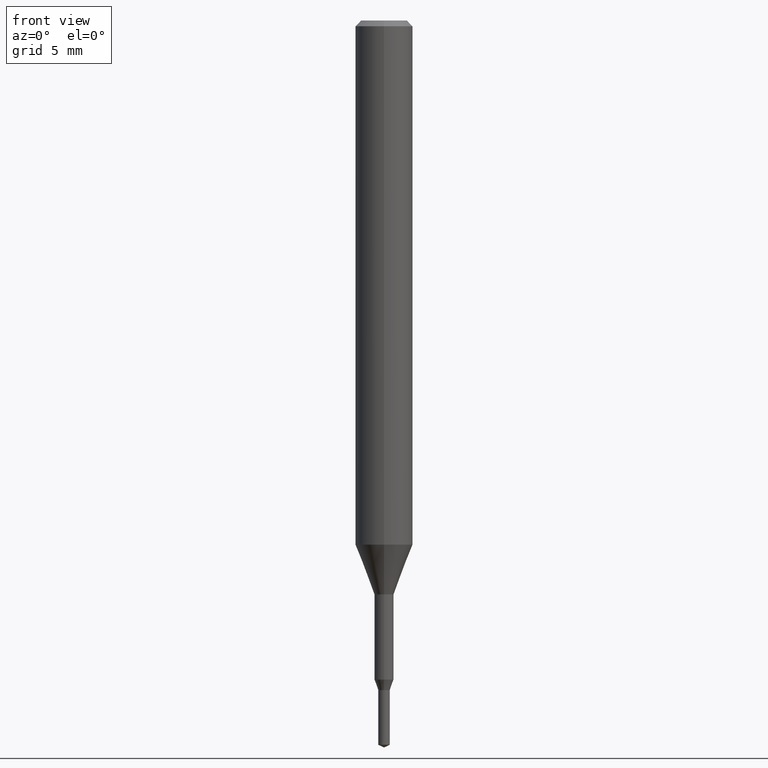
[diagram: clean part render]
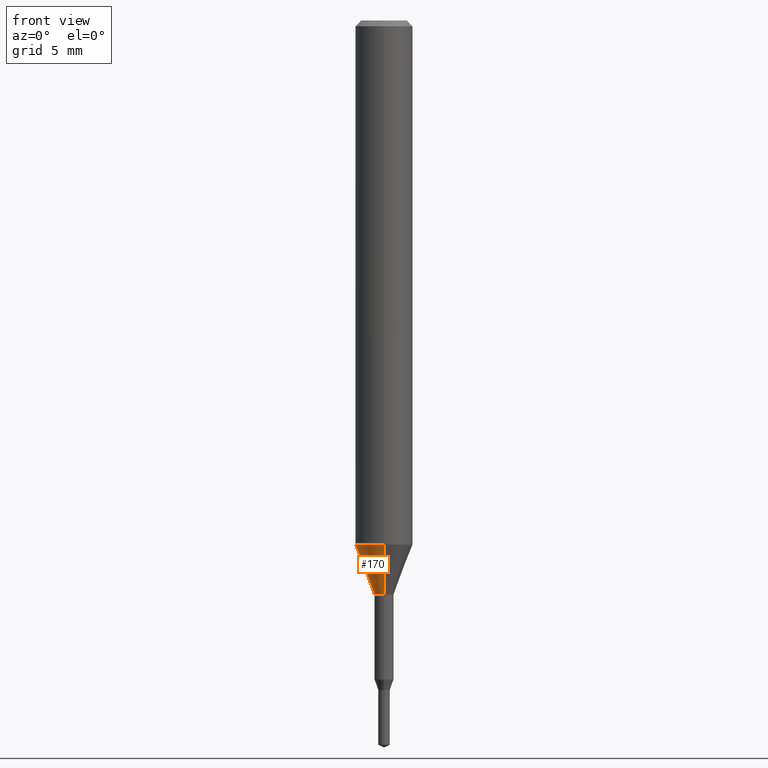
[diagram: same view with one face highlighted and labeled with its STEP entity id]
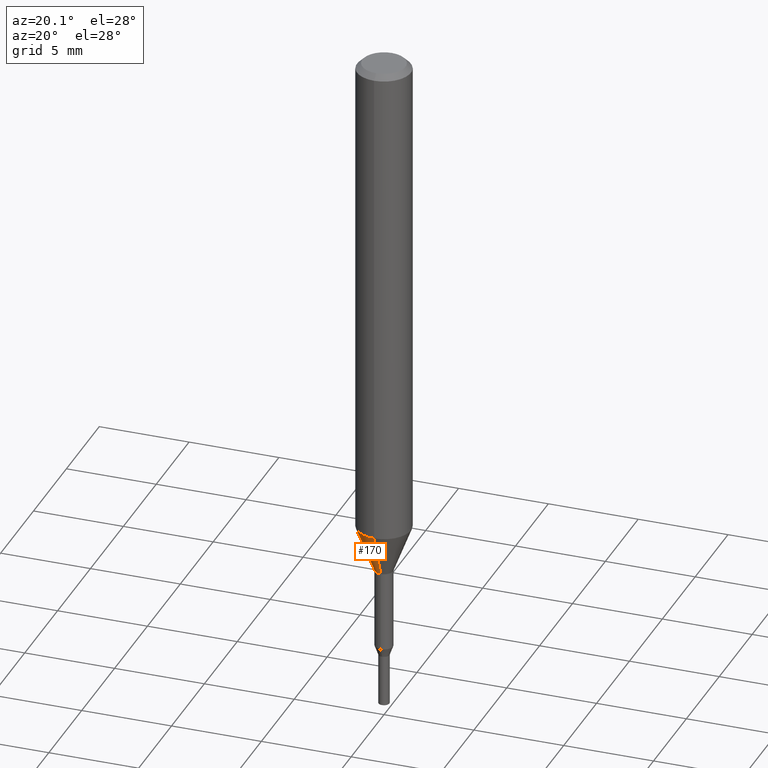
[diagram: same view with one face highlighted and labeled with its STEP entity id]
A machine part, front view. The second image highlights one B-rep face of the part: STEP entity #170.
A second angle (auxiliary view) of the same face is appended — the face is thin or edge-on in the first view.
In plain terms, the highlighted conical surface has half-angle 21.001 deg.
Its self-contained STEP definition (entity closure, byte-faithful):
#126=VERTEX_POINT('',#306);
#156=EDGE_CURVE('',#126,#200,#338,.T.);
#170=ADVANCED_FACE('',(#353),#354,.T.);
#176=VERTEX_POINT('',#360);
#184=VERTEX_POINT('',#370);
#196=EDGE_CURVE('',#126,#176,#383,.T.);
#200=VERTEX_POINT('',#387);
#220=EDGE_CURVE('',#184,#176,#411,.T.);
#232=EDGE_CURVE('',#200,#184,#423,.T.);
#306=CARTESIAN_POINT('',(6.12303176911189E-017,-0.5,-30.0));
#338=LINE('',#546,#547);
#353=FACE_OUTER_BOUND('',#567,.T.);
#354=CONICAL_SURFACE('',#568,1.0,0.366530581623394);
#360=CARTESIAN_POINT('',(0.0,0.5,-30.0));
#370=CARTESIAN_POINT('',(0.0,1.5,-27.395));
#383=CIRCLE('',#602,0.5);
#387=CARTESIAN_POINT('',(1.83690953073357E-016,-1.5,-27.395));
#411=LINE('',#635,#636);
#423=CIRCLE('',#656,1.5);
#546=CARTESIAN_POINT('',(1.22460635382238E-016,-1.0,-28.6975));
#547=VECTOR('',#771,1.0);
#567=EDGE_LOOP('',(#786,#787,#788,#789));
#568=AXIS2_PLACEMENT_3D('',#790,#791,#792);
#602=AXIS2_PLACEMENT_3D('',#821,#822,#823);
#635=CARTESIAN_POINT('',(-1.22460635382238E-016,1.0,-28.6975));
#636=VECTOR('',#860,1.0);
#656=AXIS2_PLACEMENT_3D('',#872,#873,#874);
#771=DIRECTION('',(4.38872745501645E-017,-0.35837862847256,0.933576327171018));
#786=ORIENTED_EDGE('',*,*,#220,.T.);
#787=ORIENTED_EDGE('',*,*,#196,.F.);
#788=ORIENTED_EDGE('',*,*,#156,.T.);
#789=ORIENTED_EDGE('',*,*,#232,.T.);
#790=CARTESIAN_POINT('',(0.0,0.0,-28.6975));
#791=DIRECTION('',(-0.0,-0.0,1.0));
#792=DIRECTION('',(0.0,1.0,0.0));
#821=CARTESIAN_POINT('',(0.0,0.0,-30.0));
#822=DIRECTION('',(0.0,0.0,-1.0));
#823=DIRECTION('',(0.0,1.0,0.0));
#860=DIRECTION('',(4.38872745501645E-017,-0.35837862847256,-0.933576327171018));
#872=CARTESIAN_POINT('',(0.0,0.0,-27.395));
#873=DIRECTION('',(0.0,0.0,-1.0));
#874=DIRECTION('',(0.0,1.0,0.0));